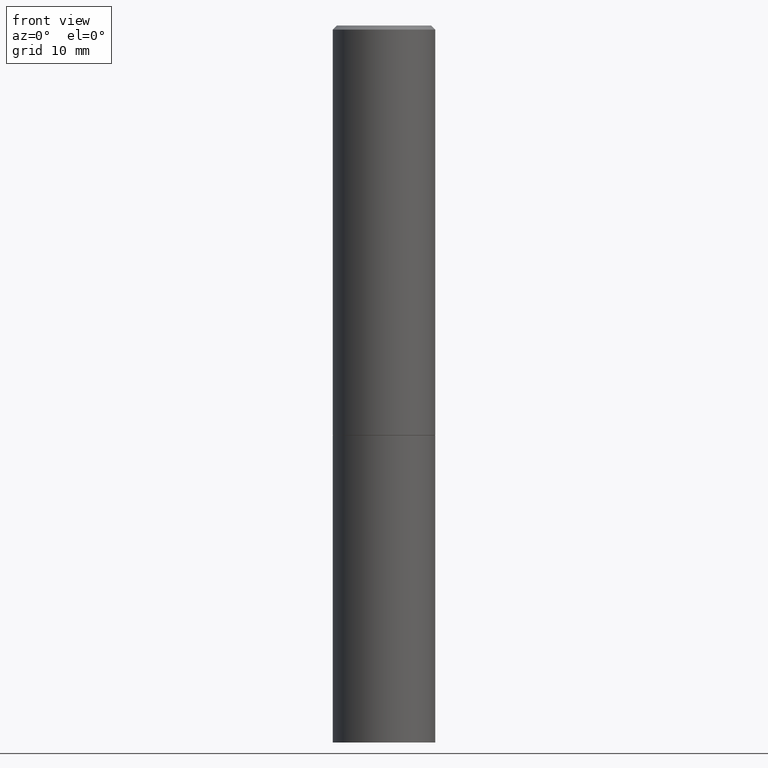
[diagram: clean part render]
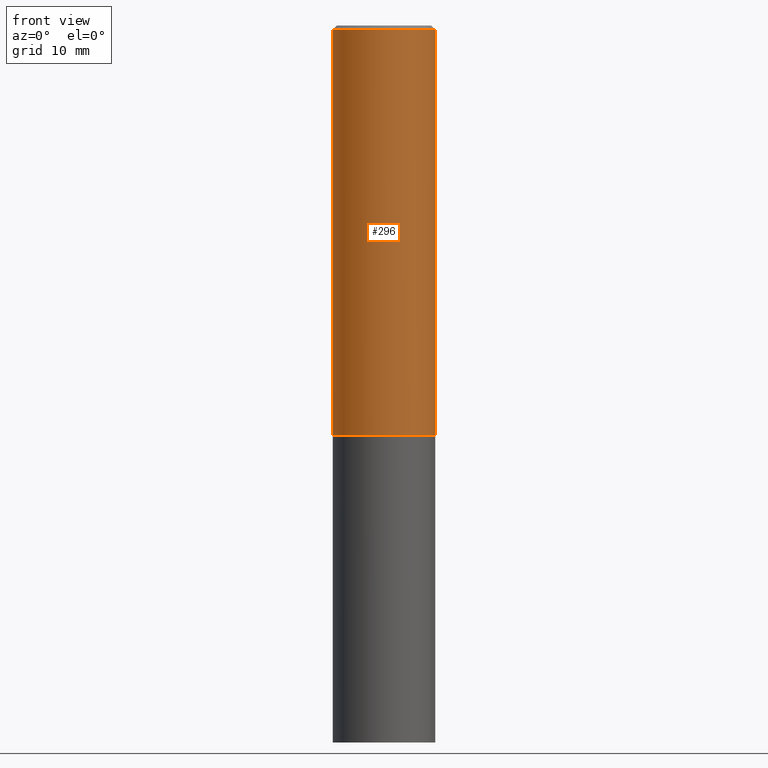
[diagram: same view with one face highlighted and labeled with its STEP entity id]
A machine part, front view. The second image highlights one B-rep face of the part: STEP entity #296.
In plain terms, the highlighted cylindrical surface (partial cylindrical patch) has radius 6.35 mm, axis along (-0, 0, 1).
Its self-contained STEP definition (entity closure, byte-faithful):
#12 = CARTESIAN_POINT ( 'NONE',  ( -0.2500000000000000000, -1.748293572161903489E-15, -1.998999999999999888 ) ) ;
#21 = CIRCLE ( 'NONE', #339, 0.2500000000000000000 ) ;
#26 = EDGE_CURVE ( 'NONE', #286, #69, #21, .T. ) ;
#32 = AXIS2_PLACEMENT_3D ( 'NONE', #143, #285, #110 ) ;
#56 = CIRCLE ( 'NONE', #360, 0.2499999999999998057 ) ;
#57 = VERTEX_POINT ( 'NONE', #313 ) ;
#69 = VERTEX_POINT ( 'NONE', #152 ) ;
#76 = DIRECTION ( 'NONE',  ( -2.445468806185136877E-29, 3.491481338843145188E-15, 1.000000000000000000 ) ) ;
#99 = ORIENTED_EDGE ( 'NONE', *, *, #357, .T. ) ;
#100 = DIRECTION ( 'NONE',  ( 1.000000000000000000, -6.982962677686266711E-15, 0.000000000000000000 ) ) ;
#105 = CARTESIAN_POINT ( 'NONE',  ( 0.2499999999999998890, -1.745740669421565889E-15, 1.219044193948983388E-29 ) ) ;
#110 = DIRECTION ( 'NONE',  ( 1.000000000000000000, -6.982962677686266711E-15, 4.876176775795935793E-29 ) ) ;
#114 = LINE ( 'NONE', #340, #292 ) ;
#126 = VECTOR ( 'NONE', #193, 39.37007874015748143 ) ;
#143 = CARTESIAN_POINT ( 'NONE',  ( 0.000000000000000000, 0.000000000000000000, 0.000000000000000000 ) ) ;
#146 = VERTEX_POINT ( 'NONE', #295 ) ;
#152 = CARTESIAN_POINT ( 'NONE',  ( 0.2500000000000000000, -8.725211865769014047E-15, -1.998999999999999888 ) ) ;
#173 = ORIENTED_EDGE ( 'NONE', *, *, #269, .F. ) ;
#193 = DIRECTION ( 'NONE',  ( -2.445468806185136877E-29, 3.491481338843145188E-15, 1.000000000000000000 ) ) ;
#195 = FACE_OUTER_BOUND ( 'NONE', #235, .T. ) ;
#214 = CARTESIAN_POINT ( 'NONE',  ( 4.890937612370287172E-31, -6.982962677686310098E-17, -0.02000000000000005593 ) ) ;
#226 = CARTESIAN_POINT ( 'NONE',  ( 4.888492143564087591E-29, -6.979471196347447369E-15, -1.998999999999999888 ) ) ;
#235 = EDGE_LOOP ( 'NONE', ( #288, #343, #99, #173 ) ) ;
#269 = EDGE_CURVE ( 'NONE', #146, #57, #56, .T. ) ;
#275 = DIRECTION ( 'NONE',  ( -2.445468806185136597E-29, 3.491481338843145583E-15, 1.000000000000000000 ) ) ;
#280 = DIRECTION ( 'NONE',  ( -2.445468806185136597E-29, 3.491481338843145583E-15, 1.000000000000000000 ) ) ;
#285 = DIRECTION ( 'NONE',  ( -2.445468806185136597E-29, 3.491481338843145583E-15, 1.000000000000000000 ) ) ;
#286 = VERTEX_POINT ( 'NONE', #12 ) ;
#288 = ORIENTED_EDGE ( 'NONE', *, *, #321, .F. ) ;
#292 = VECTOR ( 'NONE', #76, 39.37007874015748143 ) ;
#295 = CARTESIAN_POINT ( 'NONE',  ( -0.2499999999999998057, 1.675911042644702196E-15, -0.02000000000000005593 ) ) ;
#296 = ADVANCED_FACE ( 'NONE', ( #195 ), #312, .T. ) ;
#312 = CYLINDRICAL_SURFACE ( 'NONE', #32, 0.2499999999999998890 ) ;
#313 = CARTESIAN_POINT ( 'NONE',  ( 0.2499999999999998057, -1.784954126219744611E-15, -0.02000000000000005593 ) ) ;
#321 = EDGE_CURVE ( 'NONE', #286, #146, #114, .T. ) ;
#339 = AXIS2_PLACEMENT_3D ( 'NONE', #226, #280, #341 ) ;
#340 = CARTESIAN_POINT ( 'NONE',  ( -0.2499999999999998890, 1.776356839400249676E-15, -1.229733772563726025E-29 ) ) ;
#341 = DIRECTION ( 'NONE',  ( 1.000000000000000000, -6.982962677686266711E-15, 0.000000000000000000 ) ) ;
#343 = ORIENTED_EDGE ( 'NONE', *, *, #26, .T. ) ;
#357 = EDGE_CURVE ( 'NONE', #69, #57, #363, .T. ) ;
#360 = AXIS2_PLACEMENT_3D ( 'NONE', #214, #275, #100 ) ;
#363 = LINE ( 'NONE', #105, #126 ) ;